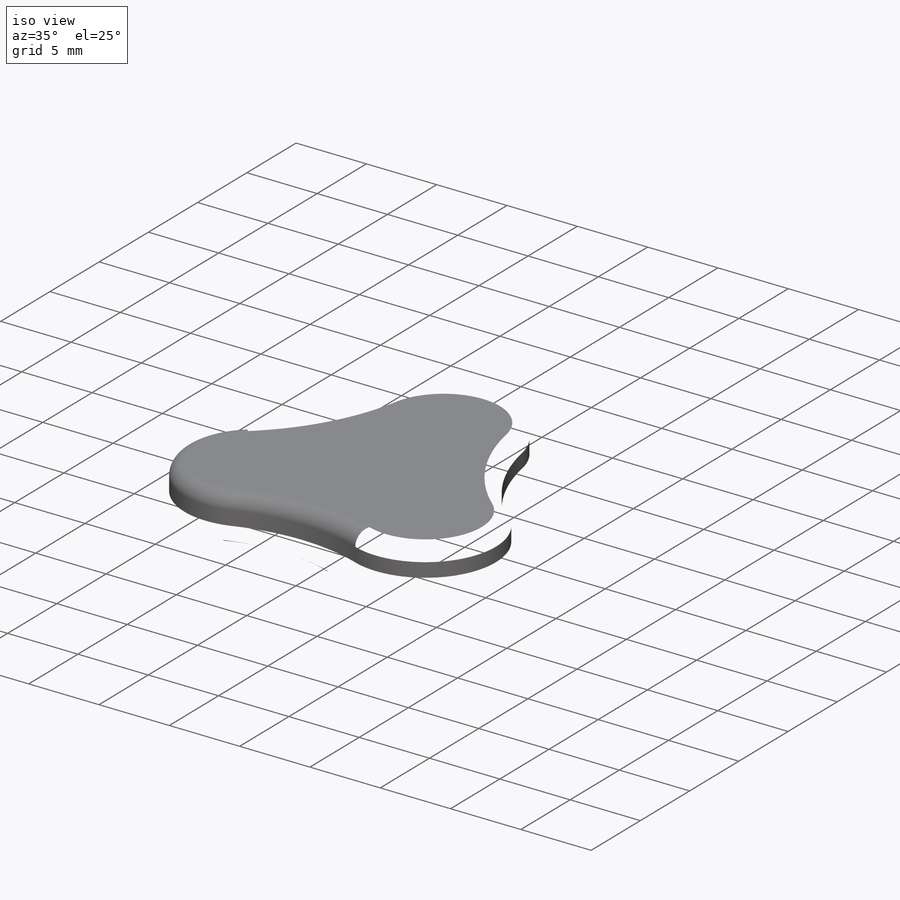
[diagram: iso view]
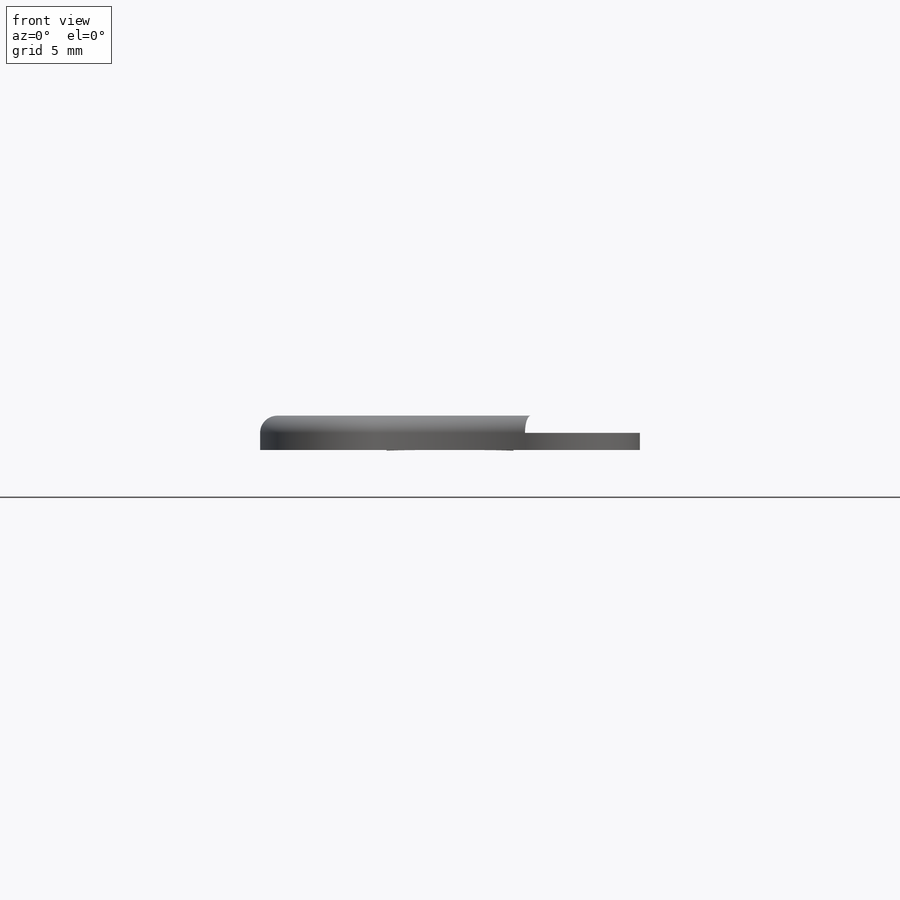
[diagram: front view]
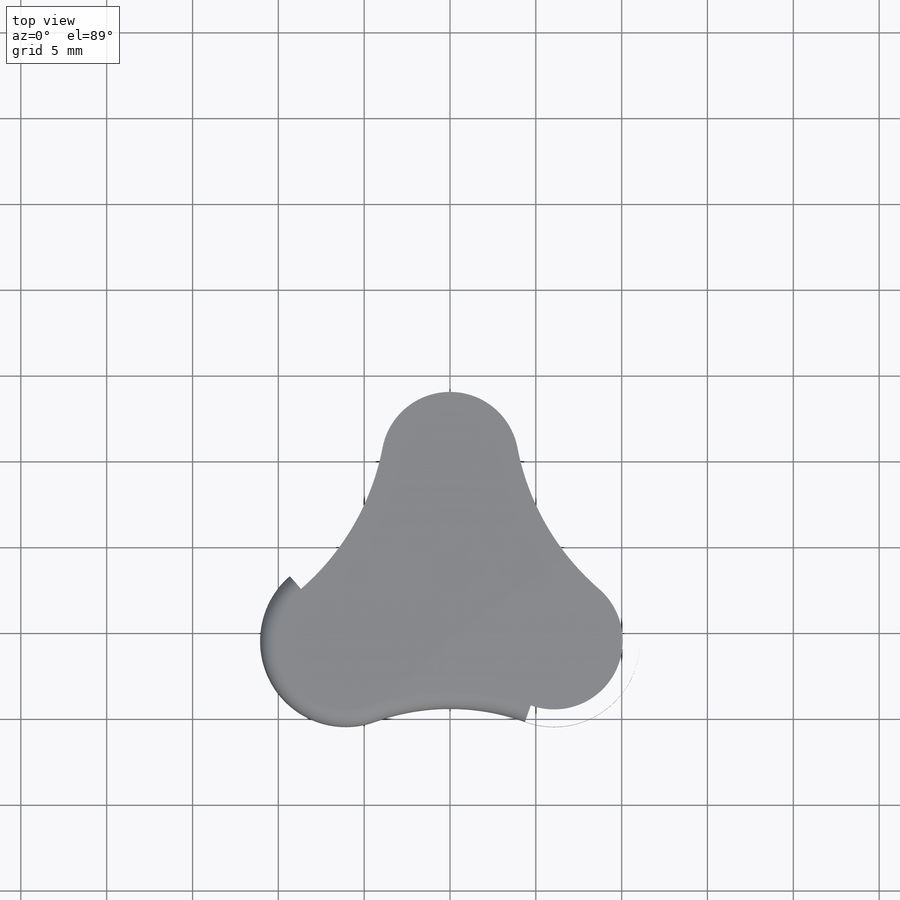
[diagram: top view]
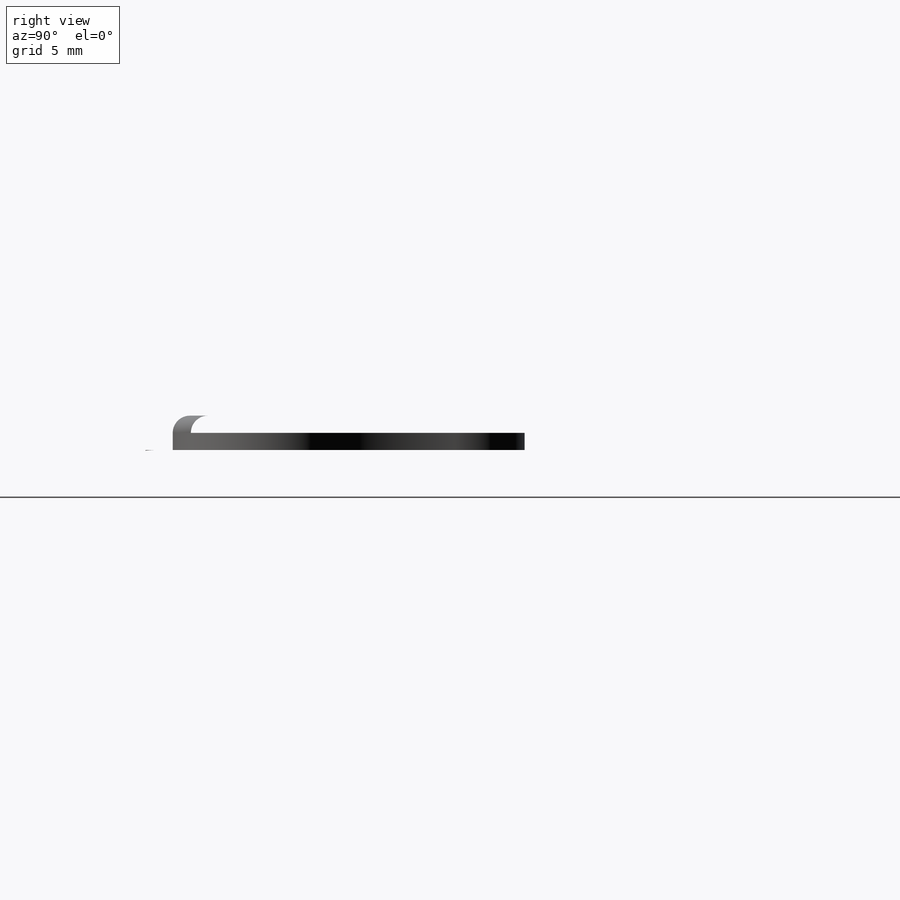
[diagram: right view]
SOLIDWORKS PART (.sldprt)
format: sldprt  version: not decoded by parser v0  size: 4,254,208 bytes
history: native  units: mm
features: sketch x3, extrude x3, fillet x2, material x1 (+11 scaffold rows collapsed)
feature tree (20):
  scaffold x11  (default folders/planes/origin — collapsed)
  material  "Material <not specified>"
  sketch  "Sketch3"  dims[c1.D1=20.0mm c1.D3=15.0mm c1.D4=2.0mm c2.D1=10.0mm c2.D3=10.0mm c2.D4=12.91mm c2.D5=13.53mm c2.D2=~16.610059mm c3.D2=45.0deg c3.D1=5.0mm c3.D4=~19.674785mm c4.D2=3.0]
  extrude  "Boss-Extrude1"  Depth=2mm
  sketch  "Sketch4"  dims[D6=5.0mm D7=2.0mm D1=2.0mm D2=2.0mm D3=2.0mm D4=2.0mm D5=2.0mm]
  extrude  "Boss-Extrude2"  Depth=2mm
  fillet  "Fillet1"  Radius=1mm
  fillet  "Fillet2"  Radius=1mm
  sketch  "Sketch5"  dims[D1=3.0mm D2=7.0mm D4=2.0mm D3=2.0mm]
  extrude  "Boss-Extrude3"  [1 undecoded]
decode coverage: 7 of 8 modeling features carry decoded parameters
note: ~ marks probable driven/reference dimensions
note: 1 parameter value undecoded
note: suppression state not decoded; provenance and decode notes live in map.json
